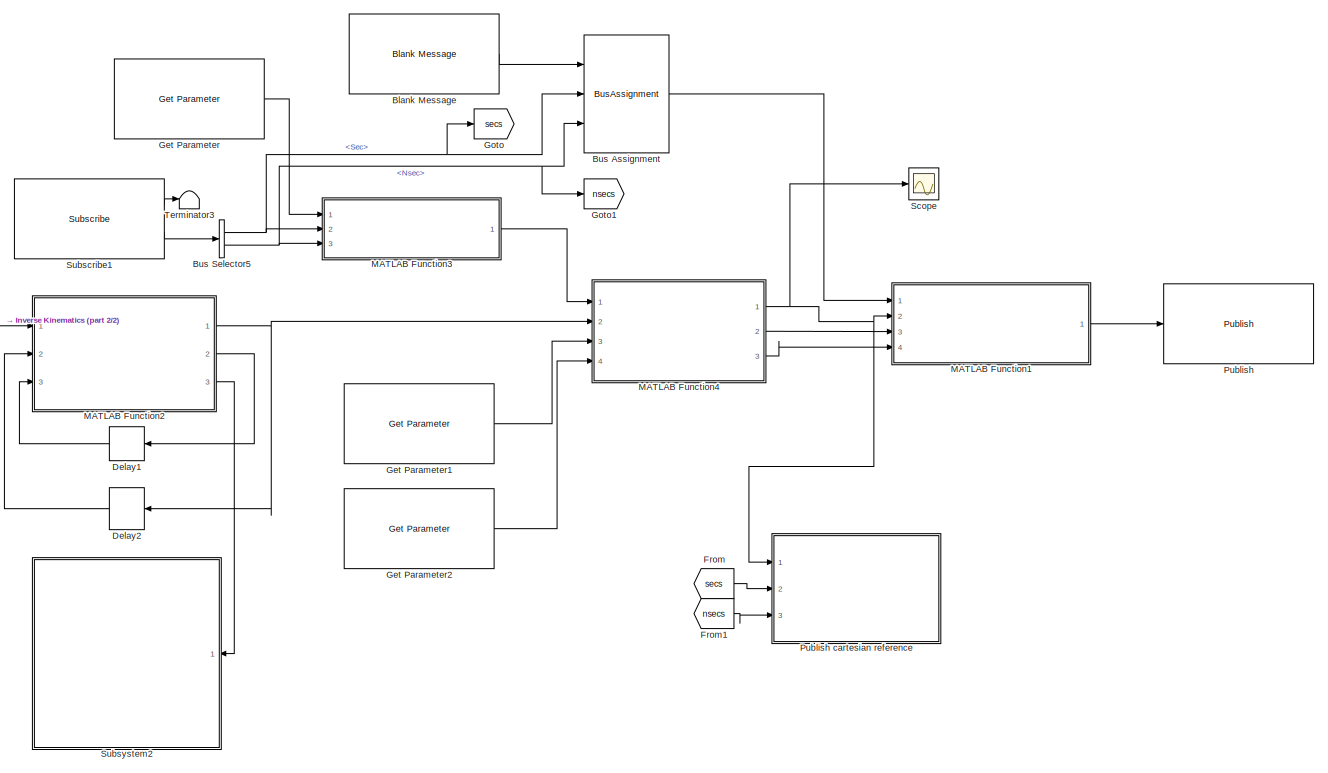
[diagram: root canvas - part 1/2, right side, full height]
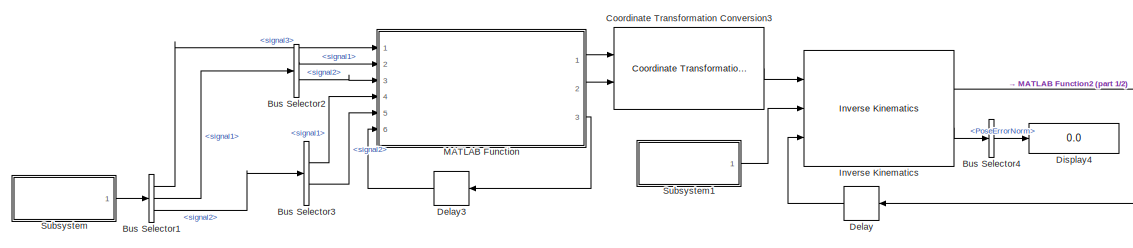
[diagram: root canvas - part 2/2, middle left region]
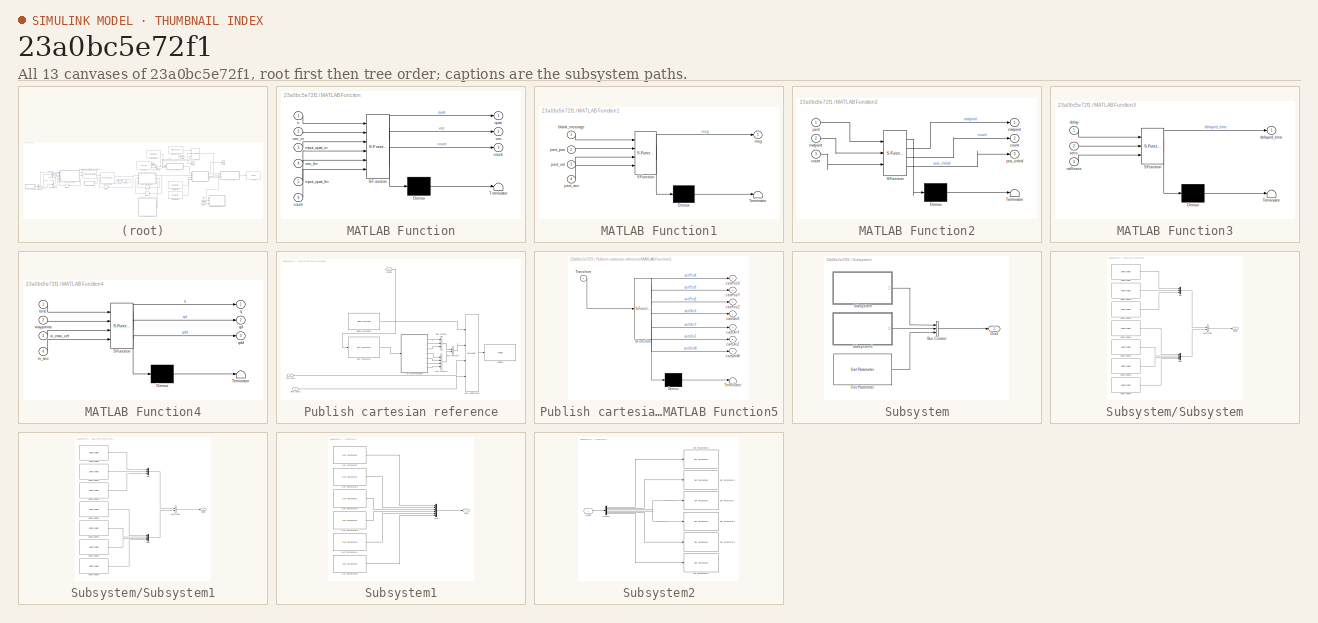
[diagram: thumbnail index - all 13 canvases of the model, root first then tree order]
MODEL slx_23a0bc5e72f1
KIND model
CONFIG AbsTol = auto
CONFIG EnableMultiTasking = off
CONFIG FixedStep = 0.01
CONFIG MaxStep = auto
CONFIG MinStep = auto
CONFIG RelTol = 1e-3
CONFIG SampleTimeConstraint = Unconstrained
CONFIG Solver = ode3
CONFIG SolverName = ode3
CONFIG StartTime = 0.0
CONFIG StopTime = inf
BLOCK [Reference] Blank Message  REF=robotlib/Blank Message
  Ports = [0, 1]
  SourceBlock = robotlib/Blank Message
  SourceProductBaseCode = RR
  SourceType = ROS Blank Message
BLOCK [BusAssignment] Bus Assignment
  AssignedSignals = TimeFromStart.Sec,TimeFromStart.Nsec
  Ports = [3, 1]
BLOCK [BusSelector] Bus Selector1
  OutputSignals = signal3,signal1,signal2
  Ports = [1, 3]
BLOCK [BusSelector] Bus Selector2
  OutputSignals = signal1,signal2
  Ports = [1, 2]
BLOCK [BusSelector] Bus Selector3
  OutputSignals = signal1,signal2
  Ports = [1, 2]
BLOCK [BusSelector] Bus Selector4
  OutputSignals = PoseErrorNorm
  Ports = [1, 1]
BLOCK [BusSelector] Bus Selector5
  OutputSignals = Clock_.Sec,Clock_.Nsec
  Ports = [1, 2]
BLOCK [Reference] Coordinate Transformation Conversion3  REF=robotcorelib/Coordinate Transformation Conversion
  Ports = [2, 1]
  SourceBlock = robotcorelib/Coordinate Transformation Conversion
  SourceProductBaseCode = NV,RO,RR
  SourceType = robotics.slcore.internal.block.CoordinateTransformationConversion
BLOCK [Delay] Delay
  DelayLength = 1
  InitialCondition = zeros(6, 1, 1)
  InputPortMap = u0
  NameLocation = top
  Ports = [1, 1]
BLOCK [Delay] Delay1
  DelayLength = 1
  InitialCondition = 1
  InputPortMap = u0
  NameLocation = top
  Ports = [1, 1]
BLOCK [Delay] Delay2
  DelayLength = 1
  InitialCondition = zeros(6, 20)
  InputPortMap = u0
  NameLocation = top
  Ports = [1, 1]
BLOCK [Delay] Delay3
  DelayLength = 1
  InitialCondition = 1
  InputPortMap = u0
  NameLocation = top
  Ports = [1, 1]
BLOCK [Display] Display4
  Decimation = 1
  Ports = [1]
BLOCK [From] From
  GotoTag = secs
BLOCK [From] From1
  GotoTag = nsecs
BLOCK [Reference] Get Parameter  REF=robotlib/Get Parameter
  Ports = [0, 1]
  SourceBlock = robotlib/Get Parameter
  SourceProductBaseCode = RR
  SourceType = ROS Get Parameter
BLOCK [Reference] Get Parameter1  REF=robotlib/Get Parameter
  Ports = [0, 1]
  SourceBlock = robotlib/Get Parameter
  SourceProductBaseCode = RR
  SourceType = ROS Get Parameter
BLOCK [Reference] Get Parameter2  REF=robotlib/Get Parameter
  Ports = [0, 1]
  SourceBlock = robotlib/Get Parameter
  SourceProductBaseCode = RR
  SourceType = ROS Get Parameter
BLOCK [Goto] Goto
  GotoTag = secs
BLOCK [Goto] Goto1
  GotoTag = nsecs
BLOCK [Reference] Inverse Kinematics  REF=robotmaniplib/Inverse Kinematics
  Ports = [3, 2]
  SourceBlock = robotmaniplib/Inverse Kinematics
  SourceProductBaseCode = RO
  SourceType = Inverse Kinematics
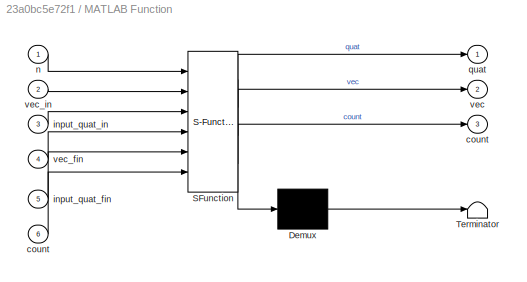
BLOCK [SubSystem] MATLAB Function
  ErrorFcn = Stateflow.Translate.translate
  PermitHierarchicalResolution = ExplicitOnly
  Ports = [6, 3]
  RequestExecContextInheritance = off
  SFBlockType = MATLAB Function
  TreatAsAtomicUnit = on
BLOCK [Demux] MATLAB Function/ Demux 
  Outputs = 1
  Ports = [1, 1]
BLOCK [S-Function] MATLAB Function/ SFunction 
  EnableBusSupport = on
  FunctionName = sf_sfun
  PortCounts = [6 4]
  Ports = [6, 4]
  SFcnIsStateOwnerBlock = off
  SFunctionDeploymentMode = off
  Tag = Stateflow S-Function 1
BLOCK [Terminator] MATLAB Function/ Terminator 
BLOCK [Outport] MATLAB Function/count
  Port = 3
BLOCK [Inport] MATLAB Function/count 
  Port = 6
BLOCK [Inport] MATLAB Function/input_quat_fin
  Port = 5
BLOCK [Inport] MATLAB Function/input_quat_in
  Port = 3
BLOCK [Inport] MATLAB Function/n
BLOCK [Outport] MATLAB Function/quat
BLOCK [Outport] MATLAB Function/vec
  Port = 2
BLOCK [Inport] MATLAB Function/vec_fin
  Port = 4
BLOCK [Inport] MATLAB Function/vec_in
  Port = 2
BLOCK [SubSystem] MATLAB Function1
  ErrorFcn = Stateflow.Translate.translate
  PermitHierarchicalResolution = ExplicitOnly
  Ports = [4, 1]
  RequestExecContextInheritance = off
  SFBlockType = MATLAB Function
  TreatAsAtomicUnit = on
BLOCK [Demux] MATLAB Function1/ Demux 
  Outputs = 1
  Ports = [1, 1]
BLOCK [S-Function] MATLAB Function1/ SFunction 
  EnableBusSupport = on
  FunctionName = sf_sfun
  PortCounts = [4 2]
  Ports = [4, 2]
  SFcnIsStateOwnerBlock = off
  SFunctionDeploymentMode = off
  Tag = Stateflow S-Function 2
BLOCK [Terminator] MATLAB Function1/ Terminator 
BLOCK [Inport] MATLAB Function1/blank_message
BLOCK [Inport] MATLAB Function1/joint_acc
  Port = 4
BLOCK [Inport] MATLAB Function1/joint_pos
  Port = 2
BLOCK [Inport] MATLAB Function1/joint_vel
  Port = 3
BLOCK [Outport] MATLAB Function1/msg
BLOCK [SubSystem] MATLAB Function2
  ErrorFcn = Stateflow.Translate.translate
  PermitHierarchicalResolution = ExplicitOnly
  Ports = [3, 3]
  RequestExecContextInheritance = off
  SFBlockType = MATLAB Function
  TreatAsAtomicUnit = on
BLOCK [Demux] MATLAB Function2/ Demux 
  Outputs = 1
  Ports = [1, 1]
BLOCK [S-Function] MATLAB Function2/ SFunction 
  EnableBusSupport = on
  FunctionName = sf_sfun
  PortCounts = [3 4]
  Ports = [3, 4]
  SFcnIsStateOwnerBlock = off
  SFunctionDeploymentMode = off
  Tag = Stateflow S-Function 5
BLOCK [Terminator] MATLAB Function2/ Terminator 
BLOCK [Outport] MATLAB Function2/count
  Port = 2
BLOCK [Inport] MATLAB Function2/count 
  Port = 3
BLOCK [Inport] MATLAB Function2/joint
BLOCK [Outport] MATLAB Function2/matjoint
BLOCK [Inport] MATLAB Function2/matjoint 
  Port = 2
BLOCK [Outport] MATLAB Function2/pos_initial
  Port = 3
BLOCK [SubSystem] MATLAB Function3
  ErrorFcn = Stateflow.Translate.translate
  PermitHierarchicalResolution = ExplicitOnly
  Ports = [3, 1]
  RequestExecContextInheritance = off
  SFBlockType = MATLAB Function
  TreatAsAtomicUnit = on
BLOCK [Demux] MATLAB Function3/ Demux 
  Outputs = 1
  Ports = [1, 1]
BLOCK [S-Function] MATLAB Function3/ SFunction 
  EnableBusSupport = on
  FunctionName = sf_sfun
  PortCounts = [3 2]
  Ports = [3, 2]
  SFcnIsStateOwnerBlock = off
  SFunctionDeploymentMode = off
  Tag = Stateflow S-Function 3
BLOCK [Terminator] MATLAB Function3/ Terminator 
BLOCK [Inport] MATLAB Function3/delay
BLOCK [Outport] MATLAB Function3/delayed_time
BLOCK [Inport] MATLAB Function3/millisecs
  Port = 3
BLOCK [Inport] MATLAB Function3/secs
  Port = 2
BLOCK [SubSystem] MATLAB Function4
  ErrorFcn = Stateflow.Translate.translate
  PermitHierarchicalResolution = ExplicitOnly
  Ports = [4, 3]
  RequestExecContextInheritance = off
  SFBlockType = MATLAB Function
  TreatAsAtomicUnit = on
BLOCK [Demux] MATLAB Function4/ Demux 
  Outputs = 1
  Ports = [1, 1]
BLOCK [S-Function] MATLAB Function4/ SFunction 
  EnableBusSupport = on
  FunctionName = sf_sfun
  PortCounts = [4 4]
  Ports = [4, 4]
  SFcnIsStateOwnerBlock = off
  SFunctionDeploymentMode = off
  Tag = Stateflow S-Function 4
BLOCK [Terminator] MATLAB Function4/ Terminator 
BLOCK [Inport] MATLAB Function4/in_acc
  Port = 4
BLOCK [Inport] MATLAB Function4/in_max_vel
  Port = 3
BLOCK [Outport] MATLAB Function4/q
BLOCK [Outport] MATLAB Function4/qd
  Port = 2
BLOCK [Outport] MATLAB Function4/qdd
  Port = 3
BLOCK [Inport] MATLAB Function4/time
BLOCK [Inport] MATLAB Function4/waypoints
  Port = 2
BLOCK [Reference] Publish  REF=robotlib/Publish
  Ports = [1]
  SourceBlock = robotlib/Publish
  SourceProductBaseCode = RR
  SourceType = ROS Publish
BLOCK [SubSystem] Publish cartesian reference
  Ports = [3]
  RequestExecContextInheritance = off
BLOCK [Reference] Publish cartesian reference/Blank Message1  REF=robotlib/Blank Message
  Ports = [0, 1]
  SourceBlock = robotlib/Blank Message
  SourceProductBaseCode = RR
  SourceType = ROS Blank Message
BLOCK [BusAssignment] Publish cartesian reference/Bus Assignment1
  AssignedSignals = Pose,Header.Stamp.Sec,Header.Stamp.Nsec
  Ports = [4, 1]
BLOCK [BusCreator] Publish cartesian reference/Bus Creator
  DisplayOption = bar
  InheritFromInputs = on
  Inputs = 3
  Ports = [3, 1]
BLOCK [BusCreator] Publish cartesian reference/Bus Creator1
  DisplayOption = bar
  InheritFromInputs = on
  Inputs = 4
  Ports = [4, 1]
BLOCK [BusCreator] Publish cartesian reference/Bus Creator2
  DisplayOption = bar
  InheritFromInputs = on
  Inputs = 2
  Ports = [2, 1]
BLOCK [Inport] Publish cartesian reference/Config
BLOCK [Reference] Publish cartesian reference/Get Transform  REF=robotmaniplib/Get Transform
  Ports = [1, 1]
  SourceBlock = robotmaniplib/Get Transform
  SourceProductBaseCode = RO
  SourceType = Get Transform
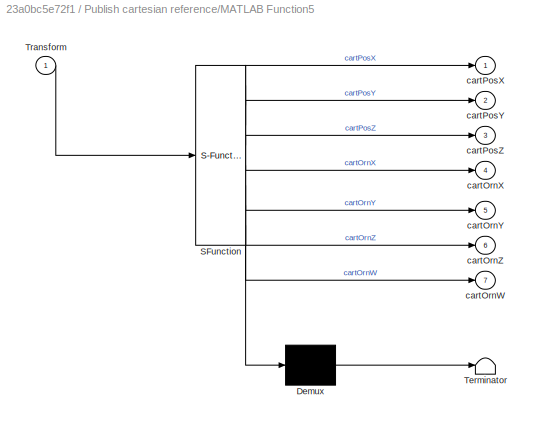
BLOCK [SubSystem] Publish cartesian reference/MATLAB Function5
  ErrorFcn = Stateflow.Translate.translate
  PermitHierarchicalResolution = ExplicitOnly
  Ports = [1, 7]
  RequestExecContextInheritance = off
  SFBlockType = MATLAB Function
  TreatAsAtomicUnit = on
BLOCK [Demux] Publish cartesian reference/MATLAB Function5/ Demux 
  Outputs = 1
  Ports = [1, 1]
BLOCK [S-Function] Publish cartesian reference/MATLAB Function5/ SFunction 
  EnableBusSupport = on
  FunctionName = sf_sfun
  PortCounts = [1 8]
  Ports = [1, 8]
  SFcnIsStateOwnerBlock = off
  SFunctionDeploymentMode = off
  Tag = Stateflow S-Function 6
BLOCK [Terminator] Publish cartesian reference/MATLAB Function5/ Terminator 
BLOCK [Inport] Publish cartesian reference/MATLAB Function5/Transform
BLOCK [Outport] Publish cartesian reference/MATLAB Function5/cartOrnW
  Port = 7
BLOCK [Outport] Publish cartesian reference/MATLAB Function5/cartOrnX
  Port = 4
BLOCK [Outport] Publish cartesian reference/MATLAB Function5/cartOrnY
  Port = 5
BLOCK [Outport] Publish cartesian reference/MATLAB Function5/cartOrnZ
  Port = 6
BLOCK [Outport] Publish cartesian reference/MATLAB Function5/cartPosX
BLOCK [Outport] Publish cartesian reference/MATLAB Function5/cartPosY
  Port = 2
BLOCK [Outport] Publish cartesian reference/MATLAB Function5/cartPosZ
  Port = 3
BLOCK [Reference] Publish cartesian reference/Publish1  REF=robotlib/Publish
  Ports = [1]
  SourceBlock = robotlib/Publish
  SourceProductBaseCode = RR
  SourceType = ROS Publish
BLOCK [Inport] Publish cartesian reference/time.nsecs
  Port = 3
BLOCK [Inport] Publish cartesian reference/time.secs
  Port = 2
BLOCK [Scope] Scope
  Floating = off
  NumInputPorts = 1
  Ports = [1]
  ScopeSpecificationString = Simulink.scopes.TimeScopeBlockCfg('CurrentConfiguration', extmgr.ConfigurationSet(extmgr.Configuration('Core','General UI',true),extmgr.Configuration('Core','Source UI',true),extmgr.Configuration('Sources','WiredSimulink',true),extmgr.Configuration('Visuals','Time Domain',true,'SerializedDisplays',{struct('MinYLimReal','-0.63008','MaxYLimReal','2.98','YLabelReal','','MinYLimMag','0.00000','MaxYLim...<+1513ch>
BLOCK [Reference] Subscribe1  REF=robotlib/Subscribe
  Ports = [0, 2]
  SourceBlock = robotlib/Subscribe
  SourceProductBaseCode = RR
  SourceType = ROS Subscribe
BLOCK [SubSystem] Subsystem
  Ports = [0, 1]
  RequestExecContextInheritance = off
BLOCK [BusCreator] Subsystem/Bus Creator
  DisplayOption = bar
  InheritFromInputs = on
  Inputs = 3
  Ports = [3, 1]
BLOCK [Reference] Subsystem/Get Parameter  REF=robotlib/Get Parameter
  Ports = [0, 1]
  SourceBlock = robotlib/Get Parameter
  SourceProductBaseCode = RR
  SourceType = ROS Get Parameter
BLOCK [Outport] Subsystem/Out1
BLOCK [SubSystem] Subsystem/Subsystem
  Ports = [0, 1]
  RequestExecContextInheritance = off
BLOCK [BusCreator] Subsystem/Subsystem/Bus Creator
  DisplayOption = bar
  InheritFromInputs = on
  Inputs = 2
  Ports = [2, 1]
BLOCK [Reference] Subsystem/Subsystem/Get Parameter  REF=robotlib/Get Parameter
  Ports = [0, 1]
  SourceBlock = robotlib/Get Parameter
  SourceProductBaseCode = RR
  SourceType = ROS Get Parameter
BLOCK [Reference] Subsystem/Subsystem/Get Parameter1  REF=robotlib/Get Parameter
  Ports = [0, 1]
  SourceBlock = robotlib/Get Parameter
  SourceProductBaseCode = RR
  SourceType = ROS Get Parameter
BLOCK [Reference] Subsystem/Subsystem/Get Parameter2  REF=robotlib/Get Parameter
  Ports = [0, 1]
  SourceBlock = robotlib/Get Parameter
  SourceProductBaseCode = RR
  SourceType = ROS Get Parameter
BLOCK [Reference] Subsystem/Subsystem/Get Parameter3  REF=robotlib/Get Parameter
  Ports = [0, 1]
  SourceBlock = robotlib/Get Parameter
  SourceProductBaseCode = RR
  SourceType = ROS Get Parameter
BLOCK [Reference] Subsystem/Subsystem/Get Parameter4  REF=robotlib/Get Parameter
  Ports = [0, 1]
  SourceBlock = robotlib/Get Parameter
  SourceProductBaseCode = RR
  SourceType = ROS Get Parameter
BLOCK [Reference] Subsystem/Subsystem/Get Parameter5  REF=robotlib/Get Parameter
  Ports = [0, 1]
  SourceBlock = robotlib/Get Parameter
  SourceProductBaseCode = RR
  SourceType = ROS Get Parameter
BLOCK [Reference] Subsystem/Subsystem/Get Parameter6  REF=robotlib/Get Parameter
  Ports = [0, 1]
  SourceBlock = robotlib/Get Parameter
  SourceProductBaseCode = RR
  SourceType = ROS Get Parameter
BLOCK [Mux] Subsystem/Subsystem/Mux
  DisplayOption = bar
  Inputs = 3
  Ports = [3, 1]
BLOCK [Mux] Subsystem/Subsystem/Mux1
  DisplayOption = bar
  Ports = [4, 1]
BLOCK [Outport] Subsystem/Subsystem/Output
BLOCK [SubSystem] Subsystem/Subsystem1
  Ports = [0, 1]
  RequestExecContextInheritance = off
BLOCK [BusCreator] Subsystem/Subsystem1/Bus Creator
  DisplayOption = bar
  InheritFromInputs = on
  Inputs = 2
  Ports = [2, 1]
BLOCK [Reference] Subsystem/Subsystem1/Get Parameter  REF=robotlib/Get Parameter
  Ports = [0, 1]
  SourceBlock = robotlib/Get Parameter
  SourceProductBaseCode = RR
  SourceType = ROS Get Parameter
BLOCK [Reference] Subsystem/Subsystem1/Get Parameter1  REF=robotlib/Get Parameter
  Ports = [0, 1]
  SourceBlock = robotlib/Get Parameter
  SourceProductBaseCode = RR
  SourceType = ROS Get Parameter
BLOCK [Reference] Subsystem/Subsystem1/Get Parameter2  REF=robotlib/Get Parameter
  Ports = [0, 1]
  SourceBlock = robotlib/Get Parameter
  SourceProductBaseCode = RR
  SourceType = ROS Get Parameter
BLOCK [Reference] Subsystem/Subsystem1/Get Parameter3  REF=robotlib/Get Parameter
  Ports = [0, 1]
  SourceBlock = robotlib/Get Parameter
  SourceProductBaseCode = RR
  SourceType = ROS Get Parameter
BLOCK [Reference] Subsystem/Subsystem1/Get Parameter4  REF=robotlib/Get Parameter
  Ports = [0, 1]
  SourceBlock = robotlib/Get Parameter
  SourceProductBaseCode = RR
  SourceType = ROS Get Parameter
BLOCK [Reference] Subsystem/Subsystem1/Get Parameter5  REF=robotlib/Get Parameter
  Ports = [0, 1]
  SourceBlock = robotlib/Get Parameter
  SourceProductBaseCode = RR
  SourceType = ROS Get Parameter
BLOCK [Reference] Subsystem/Subsystem1/Get Parameter6  REF=robotlib/Get Parameter
  Ports = [0, 1]
  SourceBlock = robotlib/Get Parameter
  SourceProductBaseCode = RR
  SourceType = ROS Get Parameter
BLOCK [Mux] Subsystem/Subsystem1/Mux
  DisplayOption = bar
  Inputs = 3
  Ports = [3, 1]
BLOCK [Mux] Subsystem/Subsystem1/Mux1
  DisplayOption = bar
  Ports = [4, 1]
BLOCK [Outport] Subsystem/Subsystem1/Output
BLOCK [SubSystem] Subsystem1
  Ports = [0, 1]
  RequestExecContextInheritance = off
BLOCK [Reference] Subsystem1/Get Parameter  REF=robotlib/Get Parameter
  Ports = [0, 1]
  SourceBlock = robotlib/Get Parameter
  SourceProductBaseCode = RR
  SourceType = ROS Get Parameter
BLOCK [Reference] Subsystem1/Get Parameter1  REF=robotlib/Get Parameter
  Ports = [0, 1]
  SourceBlock = robotlib/Get Parameter
  SourceProductBaseCode = RR
  SourceType = ROS Get Parameter
BLOCK [Reference] Subsystem1/Get Parameter2  REF=robotlib/Get Parameter
  Ports = [0, 1]
  SourceBlock = robotlib/Get Parameter
  SourceProductBaseCode = RR
  SourceType = ROS Get Parameter
BLOCK [Reference] Subsystem1/Get Parameter3  REF=robotlib/Get Parameter
  Ports = [0, 1]
  SourceBlock = robotlib/Get Parameter
  SourceProductBaseCode = RR
  SourceType = ROS Get Parameter
BLOCK [Reference] Subsystem1/Get Parameter4  REF=robotlib/Get Parameter
  Ports = [0, 1]
  SourceBlock = robotlib/Get Parameter
  SourceProductBaseCode = RR
  SourceType = ROS Get Parameter
BLOCK [Reference] Subsystem1/Get Parameter5  REF=robotlib/Get Parameter
  Ports = [0, 1]
  SourceBlock = robotlib/Get Parameter
  SourceProductBaseCode = RR
  SourceType = ROS Get Parameter
BLOCK [Mux] Subsystem1/Mux
  DisplayOption = bar
  Inputs = 6
  Ports = [6, 1]
BLOCK [Outport] Subsystem1/Out1
BLOCK [SubSystem] Subsystem2
  NameLocation = top
  Ports = [1]
  RequestExecContextInheritance = off
BLOCK [Demux] Subsystem2/Demux
  Outputs = 6
  Ports = [1, 6]
BLOCK [Reference] Subsystem2/Set Parameter  REF=robotlib/Set Parameter
  Ports = [1]
  SourceBlock = robotlib/Set Parameter
  SourceProductBaseCode = RR
  SourceType = ROS Set Parameter
BLOCK [Reference] Subsystem2/Set Parameter1  REF=robotlib/Set Parameter
  Ports = [1]
  SourceBlock = robotlib/Set Parameter
  SourceProductBaseCode = RR
  SourceType = ROS Set Parameter
BLOCK [Reference] Subsystem2/Set Parameter2  REF=robotlib/Set Parameter
  Ports = [1]
  SourceBlock = robotlib/Set Parameter
  SourceProductBaseCode = RR
  SourceType = ROS Set Parameter
BLOCK [Reference] Subsystem2/Set Parameter3  REF=robotlib/Set Parameter
  Ports = [1]
  SourceBlock = robotlib/Set Parameter
  SourceProductBaseCode = RR
  SourceType = ROS Set Parameter
BLOCK [Reference] Subsystem2/Set Parameter4  REF=robotlib/Set Parameter
  Ports = [1]
  SourceBlock = robotlib/Set Parameter
  SourceProductBaseCode = RR
  SourceType = ROS Set Parameter
BLOCK [Reference] Subsystem2/Set Parameter5  REF=robotlib/Set Parameter
  Ports = [1]
  SourceBlock = robotlib/Set Parameter
  SourceProductBaseCode = RR
  SourceType = ROS Set Parameter
BLOCK [Inport] Subsystem2/q_initial
BLOCK [Terminator] Terminator3
LINE Blank Message:1 -> Bus Assignment:1
LINE Bus Assignment:1 -> MATLAB Function1:1
LINE Bus Selector1:1 -> MATLAB Function:1
LINE Bus Selector1:2 -> Bus Selector2:1
LINE Bus Selector1:3 -> Bus Selector3:1
LINE Bus Selector2:1 -> MATLAB Function:2
LINE Bus Selector2:2 -> MATLAB Function:3
LINE Bus Selector3:1 -> MATLAB Function:4
LINE Bus Selector3:2 -> MATLAB Function:5
LINE Bus Selector4:1 -> Display4:1
NET Bus Selector5:1 -> Bus Assignment:2, Goto:1, MATLAB Function3:2
NET Bus Selector5:2 -> Bus Assignment:3, Goto1:1, MATLAB Function3:3
LINE Coordinate Transformation Conversion3:1 -> Inverse Kinematics:1
LINE Delay1:1 -> MATLAB Function2:3
LINE Delay2:1 -> MATLAB Function2:2
LINE Delay3:1 -> MATLAB Function:6
LINE Delay:1 -> Inverse Kinematics:3
LINE From1:1 -> Publish cartesian reference:3
LINE From:1 -> Publish cartesian reference:2
LINE Get Parameter1:1 -> MATLAB Function4:3
LINE Get Parameter2:1 -> MATLAB Function4:4
LINE Get Parameter:1 -> MATLAB Function3:1
NET Inverse Kinematics:1 -> Delay:1, MATLAB Function2:1
LINE Inverse Kinematics:2 -> Bus Selector4:1
LINE MATLAB Function1:1 -> Publish:1
NET MATLAB Function2:1 -> Delay2:1, MATLAB Function4:2
LINE MATLAB Function2:2 -> Delay1:1
LINE MATLAB Function2:3 -> Subsystem2:1
LINE MATLAB Function3:1 -> MATLAB Function4:1
NET MATLAB Function4:1 -> MATLAB Function1:2, Publish cartesian reference:1, Scope:1
LINE MATLAB Function4:2 -> MATLAB Function1:3
LINE MATLAB Function4:3 -> MATLAB Function1:4
LINE MATLAB Function:1 -> Coordinate Transformation Conversion3:1
LINE MATLAB Function:2 -> Coordinate Transformation Conversion3:2
LINE MATLAB Function:3 -> Delay3:1
LINE Publish cartesian reference/Blank Message1:1 -> Publish cartesian reference/Bus Assignment1:1
LINE Publish cartesian reference/Bus Assignment1:1 -> Publish cartesian reference/Publish1:1
LINE Publish cartesian reference/Bus Creator1:1 -> Publish cartesian reference/Bus Creator2:2
LINE Publish cartesian reference/Bus Creator2:1 -> Publish cartesian reference/Bus Assignment1:2
LINE Publish cartesian reference/Bus Creator:1 -> Publish cartesian reference/Bus Creator2:1
LINE Publish cartesian reference/Config:1 -> Publish cartesian reference/Get Transform:1
LINE Publish cartesian reference/Get Transform:1 -> Publish cartesian reference/MATLAB Function5:1
LINE Publish cartesian reference/MATLAB Function5:1 -> Publish cartesian reference/Bus Creator:1
LINE Publish cartesian reference/MATLAB Function5:2 -> Publish cartesian reference/Bus Creator:2
LINE Publish cartesian reference/MATLAB Function5:3 -> Publish cartesian reference/Bus Creator:3
LINE Publish cartesian reference/MATLAB Function5:4 -> Publish cartesian reference/Bus Creator1:1
LINE Publish cartesian reference/MATLAB Function5:5 -> Publish cartesian reference/Bus Creator1:2
LINE Publish cartesian reference/MATLAB Function5:6 -> Publish cartesian reference/Bus Creator1:3
LINE Publish cartesian reference/MATLAB Function5:7 -> Publish cartesian reference/Bus Creator1:4
LINE Publish cartesian reference/time.nsecs:1 -> Publish cartesian reference/Bus Assignment1:4
LINE Publish cartesian reference/time.secs:1 -> Publish cartesian reference/Bus Assignment1:3
LINE Subscribe1:1 -> Terminator3:1
LINE Subscribe1:2 -> Bus Selector5:1
LINE Subsystem/Bus Creator:1 -> Subsystem/Out1:1
LINE Subsystem/Get Parameter:1 -> Subsystem/Bus Creator:3
LINE Subsystem/Subsystem/Bus Creator:1 -> Subsystem/Subsystem/Output:1
LINE Subsystem/Subsystem/Get Parameter1:1 -> Subsystem/Subsystem/Mux:2
LINE Subsystem/Subsystem/Get Parameter2:1 -> Subsystem/Subsystem/Mux:3
LINE Subsystem/Subsystem/Get Parameter3:1 -> Subsystem/Subsystem/Mux1:1
LINE Subsystem/Subsystem/Get Parameter4:1 -> Subsystem/Subsystem/Mux1:2
LINE Subsystem/Subsystem/Get Parameter5:1 -> Subsystem/Subsystem/Mux1:3
LINE Subsystem/Subsystem/Get Parameter6:1 -> Subsystem/Subsystem/Mux1:4
LINE Subsystem/Subsystem/Get Parameter:1 -> Subsystem/Subsystem/Mux:1
LINE Subsystem/Subsystem/Mux1:1 -> Subsystem/Subsystem/Bus Creator:2
LINE Subsystem/Subsystem/Mux:1 -> Subsystem/Subsystem/Bus Creator:1
LINE Subsystem/Subsystem1/Bus Creator:1 -> Subsystem/Subsystem1/Output:1
LINE Subsystem/Subsystem1/Get Parameter1:1 -> Subsystem/Subsystem1/Mux:2
LINE Subsystem/Subsystem1/Get Parameter2:1 -> Subsystem/Subsystem1/Mux:3
LINE Subsystem/Subsystem1/Get Parameter3:1 -> Subsystem/Subsystem1/Mux1:1
LINE Subsystem/Subsystem1/Get Parameter4:1 -> Subsystem/Subsystem1/Mux1:2
LINE Subsystem/Subsystem1/Get Parameter5:1 -> Subsystem/Subsystem1/Mux1:3
LINE Subsystem/Subsystem1/Get Parameter6:1 -> Subsystem/Subsystem1/Mux1:4
LINE Subsystem/Subsystem1/Get Parameter:1 -> Subsystem/Subsystem1/Mux:1
LINE Subsystem/Subsystem1/Mux1:1 -> Subsystem/Subsystem1/Bus Creator:2
LINE Subsystem/Subsystem1/Mux:1 -> Subsystem/Subsystem1/Bus Creator:1
LINE Subsystem/Subsystem1:1 -> Subsystem/Bus Creator:2
LINE Subsystem/Subsystem:1 -> Subsystem/Bus Creator:1
LINE Subsystem1/Get Parameter1:1 -> Subsystem1/Mux:2
LINE Subsystem1/Get Parameter2:1 -> Subsystem1/Mux:3
LINE Subsystem1/Get Parameter3:1 -> Subsystem1/Mux:4
LINE Subsystem1/Get Parameter4:1 -> Subsystem1/Mux:5
LINE Subsystem1/Get Parameter5:1 -> Subsystem1/Mux:6
LINE Subsystem1/Get Parameter:1 -> Subsystem1/Mux:1
LINE Subsystem1/Mux:1 -> Subsystem1/Out1:1
LINE Subsystem1:1 -> Inverse Kinematics:2
LINE Subsystem2/Demux:1 -> Subsystem2/Set Parameter5:1
LINE Subsystem2/Demux:2 -> Subsystem2/Set Parameter4:1
LINE Subsystem2/Demux:3 -> Subsystem2/Set Parameter:1
LINE Subsystem2/Demux:4 -> Subsystem2/Set Parameter1:1
LINE Subsystem2/Demux:5 -> Subsystem2/Set Parameter2:1
LINE Subsystem2/Demux:6 -> Subsystem2/Set Parameter3:1
LINE Subsystem2/q_initial:1 -> Subsystem2/Demux:1
LINE Subsystem:1 -> Bus Selector1:1
note: NET lines group one-source signal fan-out (src -> all destinations, sorted); 1:1 wires keep LINE
CHART MATLAB Function states=1 transitions=1
  STATE_LABEL 'eML_blk_kernel()'
  STATE_LABEL 'SCRIPT:\nfunction [quat, vec, count] = fcn(n, vec_in, input_quat_in, vec_fin, input_quat_fin, count)\n\n    if n > 20\n        n = int32(20);\n    end\n\n    quat_in = quaternion(transpose(input_quat_in));\n    quat_fin = quaternion(transpose(input_quat_fin));\n\n    quater = quaternion(zeros(1, 4));\n    vec = zeros(3, 1);\n\n    if count <= 1\n        vec = vec_in;\n        quater = quat_in;\n    elseif count <...<+274ch>'
CHART MATLAB Function1 states=1 transitions=1
  STATE_LABEL 'eML_blk_kernel()'
  STATE_LABEL 'SCRIPT:\nfunction msg = assign_trajectory(blank_message, joint_pos, joint_vel, joint_acc)\n\n    msg = blank_message;\n    numJoints = length(joint_vel);\n    msg.Velocities_SL_Info.CurrentLength = uint32(numJoints);\n    msg.Velocities(1:numJoints) = joint_vel;\n    msg.Positions_SL_Info.CurrentLength = uint32(numJoints);\n    msg.Positions(1:numJoints) = joint_pos;\n    msg.Accelerations_SL_Info.CurrentL...<+79ch>'
CHART MATLAB Function3 states=1 transitions=1
  STATE_LABEL 'eML_blk_kernel()'
  STATE_LABEL 'SCRIPT:\nfunction delayed_time = get_time(delay, secs, millisecs)\n\n    time = secs + millisecs / 1e9;\n    delayed_time = time - delay;\n    \n    if delayed_time < 0\n        delayed_time = 0;\n    end\n'
CHART MATLAB Function4 states=1 transitions=1
  STATE_LABEL 'eML_blk_kernel()'
  STATE_LABEL 'SCRIPT:\nfunction [q, qd, qdd] = fcn(time, waypoints, in_max_vel, in_acc)\n\n    [rows, columns] = size(waypoints);\n\n    q = waypoints(:, 1);\n    qd = zeros(rows, 1);\n    qdd = zeros(rows, 1);\n\n    if time < 0\n        time = 0;\n    end\n\n    if length(in_max_vel) == 1\n        max_vel = in_max_vel * ones(rows, 1);\n    else\n        max_vel = in_max_vel;\n    end\n\n    if length(in_acc) == 1\n        acc = ...<+2274ch>'
CHART MATLAB Function2 states=1 transitions=1
  STATE_LABEL 'eML_blk_kernel()'
  STATE_LABEL 'SCRIPT:\nfunction [matjoint, count, pos_initial] = fcn(joint, matjoint, count)\n\n% matrice di waypoints 6x20\n\nif count >= 1 && count <= 20\n    matjoint(1:6, count) = joint;\nend\n\npos_initial=matjoint(1:6,1);\n\ncount = count + 1;\n\n\n\n\n    \n\n'
CHART Publish cartesian reference/MATLAB Function5 states=1 transitions=1
  STATE_LABEL 'eML_blk_kernel()'
  STATE_LABEL 'SCRIPT:\nfunction [cartPosX, cartPosY, cartPosZ, cartOrnX, cartOrnY, cartOrnZ, cartOrnW] = calculate_cartesian_state(Transform)\n\n    cartPos = Transform(1:3, 4);\n    cartOrn = rotm2quat(Transform(1:3, 1:3));\n    \n    cartPosX = cartPos(1);\n    cartPosY = cartPos(2);\n    cartPosZ = cartPos(3);\n    \n    cartOrnX = cartOrn(1);\n    cartOrnY = cartOrn(2);\n    cartOrnZ = cartOrn(3);\n    cartOrnW = cartOr...<+8ch>'
CHART  states=0 transitions=0
CHART  states=0 transitions=0
CHART  states=0 transitions=0
CHART  states=0 transitions=0
CHART  states=0 transitions=0
CHART  states=0 transitions=0
